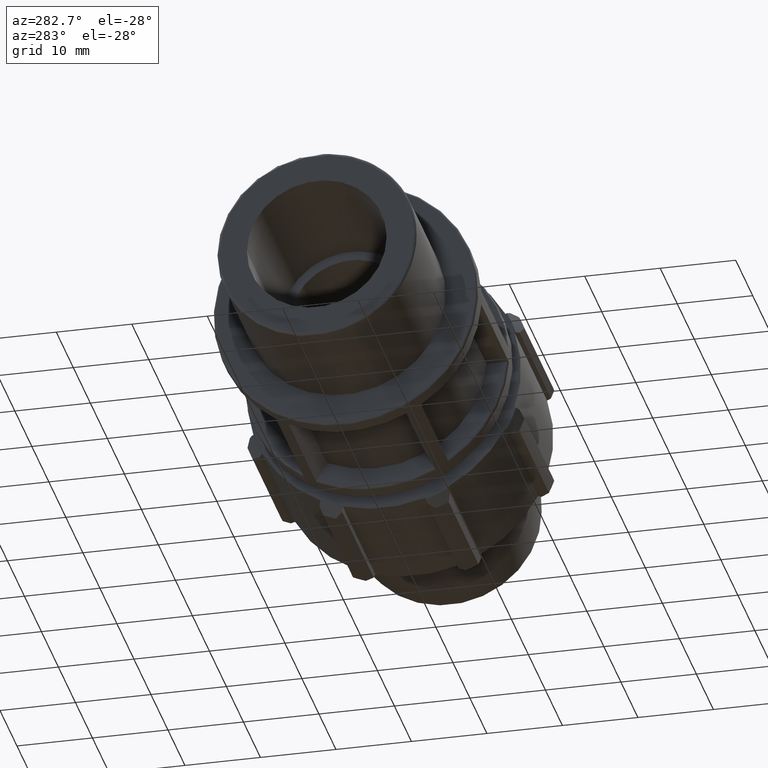
[diagram: clean part render]
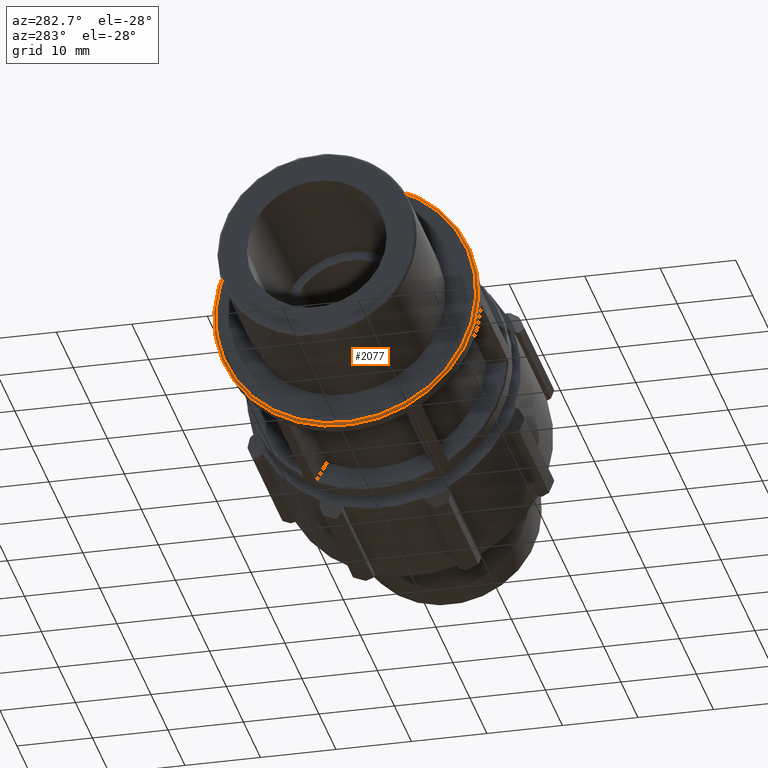
[diagram: same view with one face highlighted and labeled with its STEP entity id]
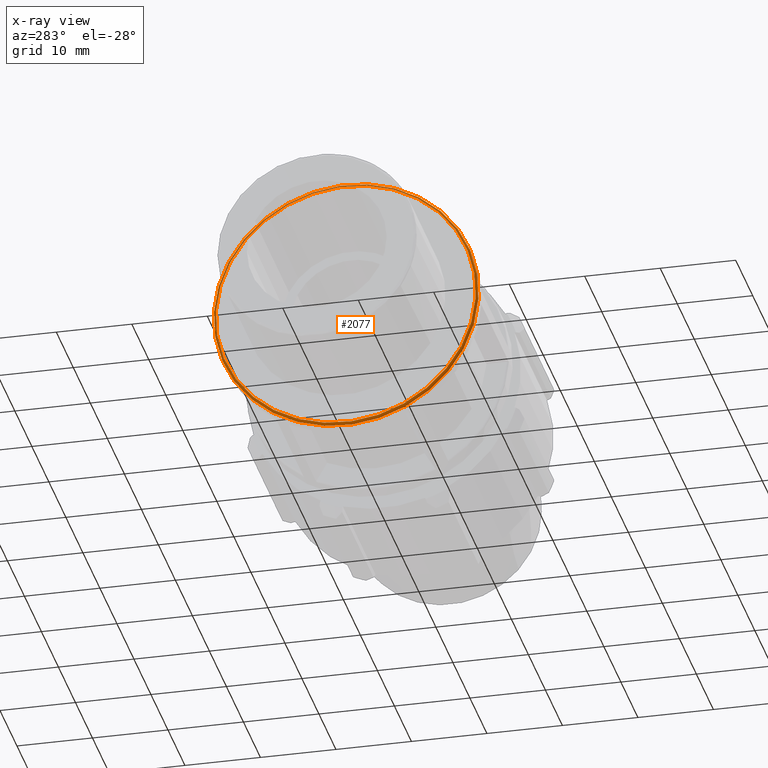
[diagram: x-ray of the same camera — body ghosted, the highlighted face saturated]
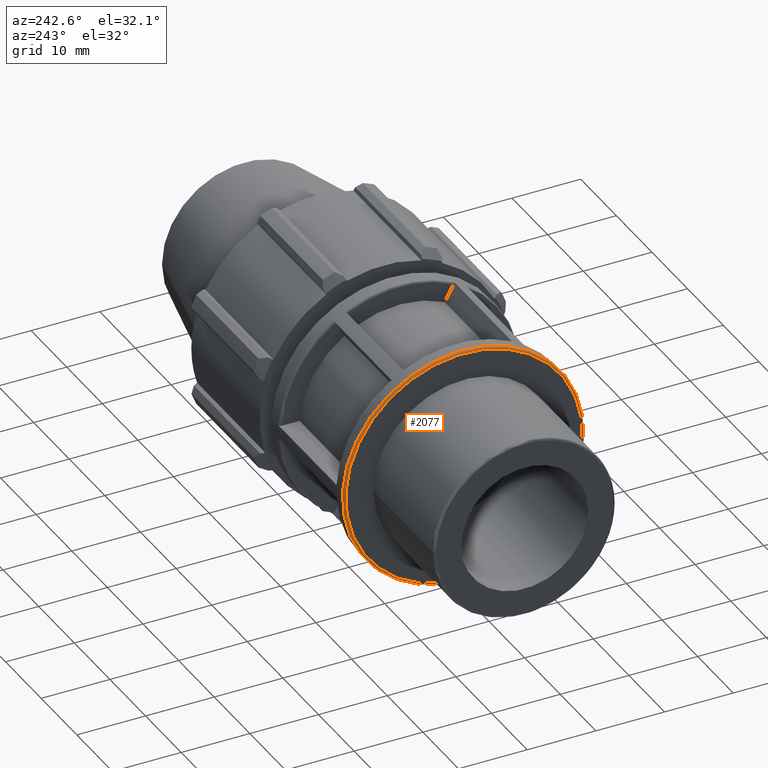
[diagram: same view with one face highlighted and labeled with its STEP entity id]
A machine part, auxiliary view. The second image highlights one B-rep face of the part: STEP entity #2077.
The next image is the same camera in x-ray: the body ghosted, the highlighted face saturated — about 16% of this face is hidden behind the body in this view.
A second angle (auxiliary view) of the same face is appended — the face is thin or edge-on in the first view.
In plain terms, the highlighted toroidal blend (fillet) surface has major radius 17.23 mm and minor (blend) radius 0.32 mm.
Its self-contained STEP definition (entity closure, byte-faithful):
#470=FACE_BOUND('',#635,.T.);
#507=FACE_OUTER_BOUND('',#634,.T.);
#634=EDGE_LOOP('',(#1438));
#635=EDGE_LOOP('',(#1439));
#762=CIRCLE('',#2197,17.55);
#780=CIRCLE('',#2233,17.23);
#869=VERTEX_POINT('',#3040);
#904=VERTEX_POINT('',#3343);
#1072=EDGE_CURVE('',#869,#869,#762,.T.);
#1124=EDGE_CURVE('',#904,#904,#780,.T.);
#1438=ORIENTED_EDGE('',*,*,#1124,.T.);
#1439=ORIENTED_EDGE('',*,*,#1072,.T.);
#1935=TOROIDAL_SURFACE('',#2232,17.23,0.32);
#2077=ADVANCED_FACE('',(#507,#470),#1935,.T.);
#2197=AXIS2_PLACEMENT_3D('',#3041,#2445,#2446);
#2232=AXIS2_PLACEMENT_3D('',#3342,#2527,#2528);
#2233=AXIS2_PLACEMENT_3D('',#3344,#2529,#2530);
#2445=DIRECTION('center_axis',(-1.,0.,0.));
#2446=DIRECTION('ref_axis',(0.,-0.551719337341258,0.834029839276583));
#2527=DIRECTION('center_axis',(1.,0.,0.));
#2528=DIRECTION('ref_axis',(0.,0.,-1.));
#2529=DIRECTION('center_axis',(1.,0.,0.));
#2530=DIRECTION('ref_axis',(0.,-0.551719337341258,0.834029839276583));
#3040=CARTESIAN_POINT('',(17.32,9.68267437033908,-14.637223679304));
#3041=CARTESIAN_POINT('Origin',(17.32,0.,0.));
#3342=CARTESIAN_POINT('Origin',(17.32,0.,0.));
#3343=CARTESIAN_POINT('',(17.,9.50612418238988,-14.3703341307355));
#3344=CARTESIAN_POINT('Origin',(17.,0.,0.));